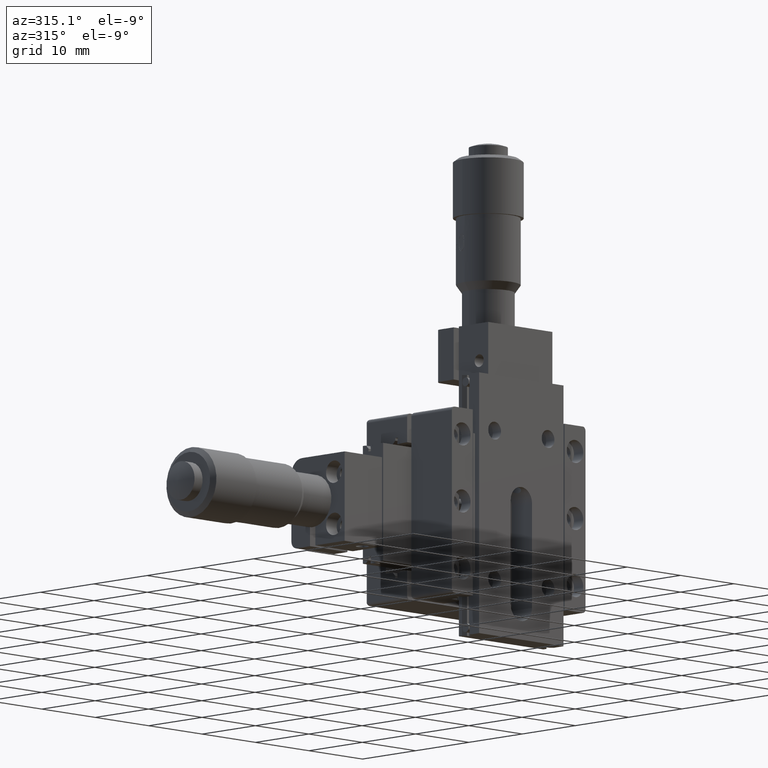
[diagram: clean part render]
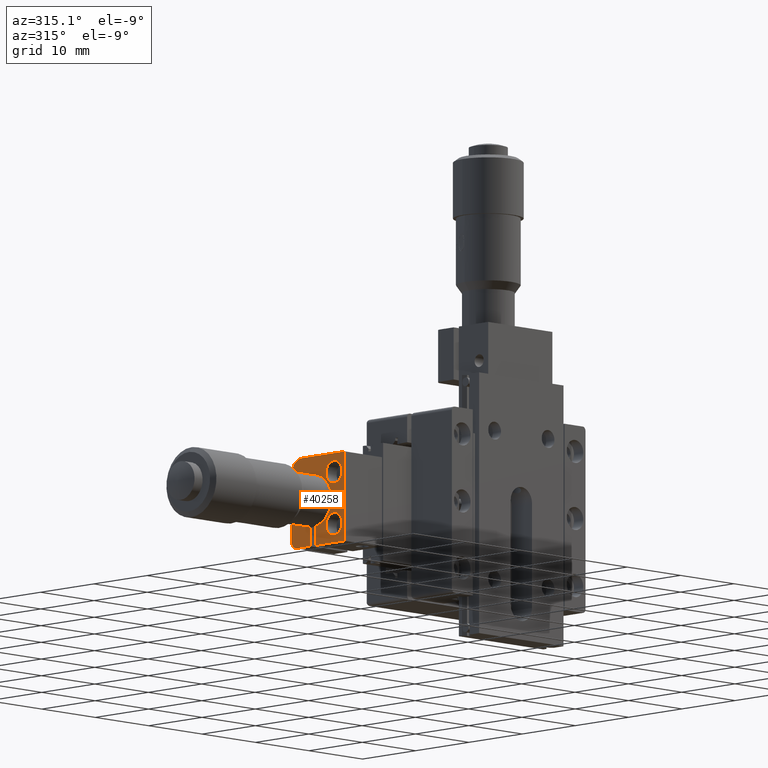
[diagram: same view with one face highlighted and labeled with its STEP entity id]
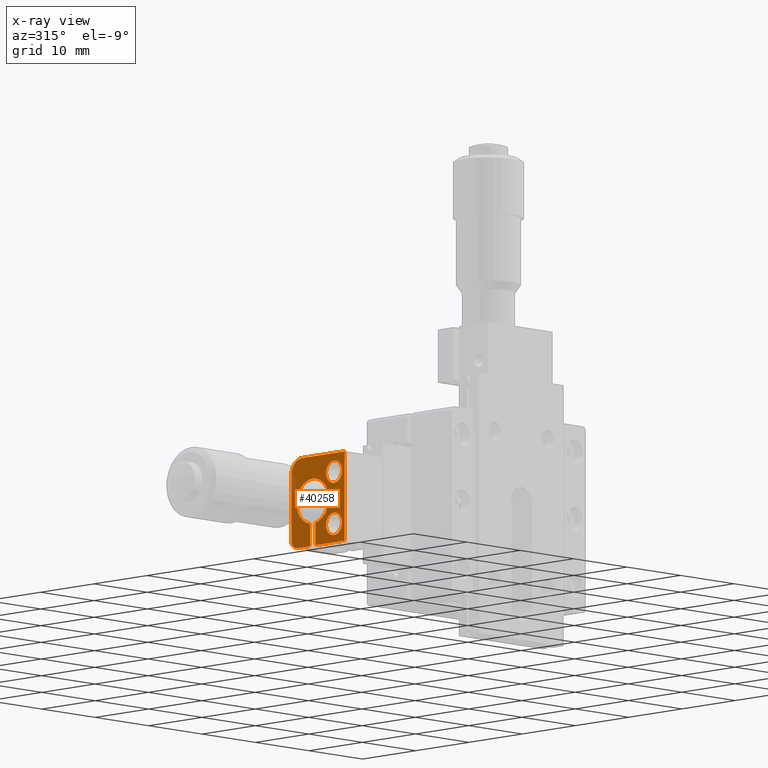
[diagram: x-ray of the same camera — body ghosted, the highlighted face saturated]
A machine part, auxiliary view. The second image highlights one B-rep face of the part: STEP entity #40258.
The next image is the same camera in x-ray: the body ghosted, the highlighted face saturated — about 4% of this face is hidden behind the body in this view.
In plain terms, the highlighted planar face has unit normal (-1, -0, 0).
Its self-contained STEP definition (entity closure, byte-faithful):
#64 = VERTEX_POINT ( 'NONE', #32658 ) ;
#610 = DIRECTION ( 'NONE',  ( -5.551115123125776800E-016, 8.627508404916919900E-016, -1.000000000000000000 ) ) ;
#953 = VECTOR ( 'NONE', #23412, 1000.000000000000000 ) ;
#1407 = FACE_BOUND ( 'NONE', #37531, .T. ) ;
#1509 = EDGE_LOOP ( 'NONE', ( #20635, #67896, #46888, #70201, #14124, #55356, #52068, #8792, #59016, #42901, #12115 ) ) ;
#1911 = CARTESIAN_POINT ( 'NONE',  ( -24.49999999999914000, 15.10000000000000900, -5.999999999999142000 ) ) ;
#2759 = LINE ( 'NONE', #54624, #59820 ) ;
#4376 = CARTESIAN_POINT ( 'NONE',  ( -24.49999999999914000, 10.60000000000002800, 2.000000000000874000 ) ) ;
#4426 = CARTESIAN_POINT ( 'NONE',  ( -24.49999999999916500, 18.59999999999995200, 4.000000000000866000 ) ) ;
#5564 = DIRECTION ( 'NONE',  ( 0.0000000000000000000, -1.156482317317871700E-015, 1.000000000000000000 ) ) ;
#5572 = CARTESIAN_POINT ( 'NONE',  ( -24.49999999999914000, 14.10000000000000900, -5.999999999999135800 ) ) ;
#7340 = EDGE_CURVE ( 'NONE', #68285, #58389, #49350, .T. ) ;
#8687 = EDGE_CURVE ( 'NONE', #34482, #68753, #18601, .T. ) ;
#8792 = ORIENTED_EDGE ( 'NONE', *, *, #9695, .F. ) ;
#9630 = EDGE_CURVE ( 'NONE', #29493, #63213, #29939, .T. ) ;
#9695 = EDGE_CURVE ( 'NONE', #68753, #29493, #24027, .T. ) ;
#10308 = CARTESIAN_POINT ( 'NONE',  ( -24.49999999999914000, 8.600000000000033400, -5.999999999999137600 ) ) ;
#10404 = ORIENTED_EDGE ( 'NONE', *, *, #13450, .F. ) ;
#11099 = CARTESIAN_POINT ( 'NONE',  ( -24.49999999999914000, 17.59999999999998400, -4.999999999999138500 ) ) ;
#11724 = CARTESIAN_POINT ( 'NONE',  ( -24.49999999999914000, 14.10000000000004100, -2.958039891548931900 ) ) ;
#11819 = CARTESIAN_POINT ( 'NONE',  ( -24.49999999999914000, 14.60000000000000900, 8.680199795431189300E-013 ) ) ;
#12115 = ORIENTED_EDGE ( 'NONE', *, *, #7340, .T. ) ;
#13450 = EDGE_CURVE ( 'NONE', #28195, #54145, #36526, .T. ) ;
#13613 = CARTESIAN_POINT ( 'NONE',  ( -24.49999999999914000, 10.60000000000002800, -1.999999999999127100 ) ) ;
#14124 = ORIENTED_EDGE ( 'NONE', *, *, #47877, .F. ) ;
#14307 = VERTEX_POINT ( 'NONE', #63198 ) ;
#14935 = ORIENTED_EDGE ( 'NONE', *, *, #33885, .F. ) ;
#16029 = CARTESIAN_POINT ( 'NONE',  ( -24.49999999999914000, 10.60000000000003000, -3.499999999999126500 ) ) ;
#17466 = DIRECTION ( 'NONE',  ( 0.0000000000000000000, -1.156482317317871700E-015, 1.000000000000000000 ) ) ;
#17994 = CARTESIAN_POINT ( 'NONE',  ( -24.49999999999914000, 14.60000000000000900, 8.680199795431189300E-013 ) ) ;
#18338 = EDGE_CURVE ( 'NONE', #63881, #35128, #27239, .T. ) ;
#18601 = LINE ( 'NONE', #33190, #33865 ) ;
#20635 = ORIENTED_EDGE ( 'NONE', *, *, #51806, .F. ) ;
#20685 = VECTOR ( 'NONE', #65430, 1000.000000000000000 ) ;
#22467 = VERTEX_POINT ( 'NONE', #24119 ) ;
#23412 = DIRECTION ( 'NONE',  ( -5.551115123125777800E-016, 7.402861605769573300E-016, -1.000000000000000000 ) ) ;
#23611 = DIRECTION ( 'NONE',  ( 5.551115123125778800E-016, -7.402861605769571300E-016, 1.000000000000000000 ) ) ;
#23749 = CIRCLE ( 'NONE', #31041, 1.500000000000000000 ) ;
#24027 = LINE ( 'NONE', #10308, #68204 ) ;
#24119 = CARTESIAN_POINT ( 'NONE',  ( -24.49999999999914000, 15.10000000000000700, -2.958039891548933200 ) ) ;
#24195 = CARTESIAN_POINT ( 'NONE',  ( -24.49999999999914000, 16.59999999999995500, 4.000000000000858900 ) ) ;
#24263 = AXIS2_PLACEMENT_3D ( 'NONE', #17994, #56025, #39380 ) ;
#24692 = VECTOR ( 'NONE', #59150, 1000.000000000000000 ) ;
#25246 = CARTESIAN_POINT ( 'NONE',  ( -24.49999999999914000, 10.60000000000002600, 3.500000000000873500 ) ) ;
#27239 = LINE ( 'NONE', #58895, #24692 ) ;
#27688 = CIRCLE ( 'NONE', #43773, 1.499999999999999600 ) ;
#28145 = DIRECTION ( 'NONE',  ( -1.000000000000000000, -1.955095636017512700E-016, -2.220446049250319500E-016 ) ) ;
#28195 = VERTEX_POINT ( 'NONE', #4376 ) ;
#28857 = AXIS2_PLACEMENT_3D ( 'NONE', #11819, #60744, #43952 ) ;
#29422 = FACE_BOUND ( 'NONE', #52882, .T. ) ;
#29493 = VERTEX_POINT ( 'NONE', #56632 ) ;
#29939 = LINE ( 'NONE', #5572, #20685 ) ;
#30707 = DIRECTION ( 'NONE',  ( 0.0000000000000000000, -1.156482317317871300E-015, 1.000000000000000000 ) ) ;
#31041 = AXIS2_PLACEMENT_3D ( 'NONE', #25246, #52619, #30707 ) ;
#31058 = CARTESIAN_POINT ( 'NONE',  ( -24.49999999999914000, 14.60000000000000900, 3.000000000000857100 ) ) ;
#32054 = CARTESIAN_POINT ( 'NONE',  ( -24.49999999999914000, 8.600000000000028100, 6.000000000000862400 ) ) ;
#32422 = AXIS2_PLACEMENT_3D ( 'NONE', #11099, #54586, #32704 ) ;
#32658 = CARTESIAN_POINT ( 'NONE',  ( -24.49999999999916500, 18.59999999999998000, -4.999999999999132200 ) ) ;
#32704 = DIRECTION ( 'NONE',  ( 0.0000000000000000000, 0.0000000000000000000, 1.000000000000000000 ) ) ;
#32887 = CIRCLE ( 'NONE', #28857, 2.999999999999988900 ) ;
#33190 = CARTESIAN_POINT ( 'NONE',  ( -24.49999999999914000, 8.600000000000028100, 6.000000000000862400 ) ) ;
#33399 = CARTESIAN_POINT ( 'NONE',  ( -24.49999999999914000, 10.60000000000002600, 3.500000000000873500 ) ) ;
#33832 = DIRECTION ( 'NONE',  ( -1.000000000000000000, -1.955095636017512700E-016, -2.220446049250319500E-016 ) ) ;
#33833 = CARTESIAN_POINT ( 'NONE',  ( -24.49999999999916500, 18.59999999999995500, -5.999999999999133100 ) ) ;
#33865 = VECTOR ( 'NONE', #610, 1000.000000000000000 ) ;
#33885 = EDGE_CURVE ( 'NONE', #14307, #70216, #53027, .T. ) ;
#34482 = VERTEX_POINT ( 'NONE', #32054 ) ;
#34589 = CARTESIAN_POINT ( 'NONE',  ( -24.49999999999914000, 15.10000000000000900, -5.999999999999142000 ) ) ;
#35128 = VERTEX_POINT ( 'NONE', #65702 ) ;
#36069 = DIRECTION ( 'NONE',  ( -1.000000000000000000, -1.955095636017512700E-016, -2.220446049250319500E-016 ) ) ;
#36526 = CIRCLE ( 'NONE', #41032, 1.500000000000000000 ) ;
#37531 = EDGE_LOOP ( 'NONE', ( #46124, #14935 ) ) ;
#39380 = DIRECTION ( 'NONE',  ( 0.0000000000000000000, -5.782411586589378300E-016, 1.000000000000000000 ) ) ;
#40258 = ADVANCED_FACE ( 'NONE', ( #44831, #1407, #29422 ), #50966, .T. ) ;
#41032 = AXIS2_PLACEMENT_3D ( 'NONE', #33399, #28145, #49385 ) ;
#41852 = LINE ( 'NONE', #62464, #52053 ) ;
#42901 = ORIENTED_EDGE ( 'NONE', *, *, #56346, .F. ) ;
#43773 = AXIS2_PLACEMENT_3D ( 'NONE', #16029, #54038, #5564 ) ;
#43952 = DIRECTION ( 'NONE',  ( 0.0000000000000000000, -5.782411586589378300E-016, 1.000000000000000000 ) ) ;
#44594 = EDGE_CURVE ( 'NONE', #64, #35128, #54430, .T. ) ;
#44812 = DIRECTION ( 'NONE',  ( -1.000000000000000000, -1.955095636017518600E-016, 5.551115123125777800E-016 ) ) ;
#44831 = FACE_OUTER_BOUND ( 'NONE', #1509, .T. ) ;
#45013 = EDGE_CURVE ( 'NONE', #54145, #28195, #23749, .T. ) ;
#45026 = AXIS2_PLACEMENT_3D ( 'NONE', #24195, #36069, #51770 ) ;
#46124 = ORIENTED_EDGE ( 'NONE', *, *, #63002, .F. ) ;
#46843 = CARTESIAN_POINT ( 'NONE',  ( -24.49999999999914000, 10.60000000000002500, 5.000000000000874000 ) ) ;
#46888 = ORIENTED_EDGE ( 'NONE', *, *, #18338, .F. ) ;
#47877 = EDGE_CURVE ( 'NONE', #55663, #22467, #50723, .T. ) ;
#48372 = DIRECTION ( 'NONE',  ( 3.854263915582012400E-016, 1.000000000000000000, 6.599372177287871100E-017 ) ) ;
#49350 = CIRCLE ( 'NONE', #45026, 2.000000000000000000 ) ;
#49385 = DIRECTION ( 'NONE',  ( 0.0000000000000000000, -1.156482317317871300E-015, 1.000000000000000000 ) ) ;
#50187 = ORIENTED_EDGE ( 'NONE', *, *, #45013, .F. ) ;
#50447 = AXIS2_PLACEMENT_3D ( 'NONE', #33833, #44812, #23611 ) ;
#50723 = CIRCLE ( 'NONE', #24263, 2.999999999999988900 ) ;
#50857 = CARTESIAN_POINT ( 'NONE',  ( -24.49999999999914000, 8.600000000000033400, -5.999999999999137600 ) ) ;
#50966 = PLANE ( 'NONE',  #50447 ) ;
#51770 = DIRECTION ( 'NONE',  ( 0.0000000000000000000, 0.0000000000000000000, 1.000000000000000000 ) ) ;
#51806 = EDGE_CURVE ( 'NONE', #64, #58389, #41852, .T. ) ;
#52053 = VECTOR ( 'NONE', #56989, 1000.000000000000000 ) ;
#52068 = ORIENTED_EDGE ( 'NONE', *, *, #9630, .F. ) ;
#52191 = EDGE_CURVE ( 'NONE', #22467, #63881, #52890, .T. ) ;
#52619 = DIRECTION ( 'NONE',  ( -1.000000000000000000, -1.955095636017512700E-016, -2.220446049250319500E-016 ) ) ;
#52882 = EDGE_LOOP ( 'NONE', ( #50187, #10404 ) ) ;
#52890 = LINE ( 'NONE', #34589, #953 ) ;
#53027 = CIRCLE ( 'NONE', #65251, 1.499999999999999600 ) ;
#54038 = DIRECTION ( 'NONE',  ( -1.000000000000000000, -1.955095636017512700E-016, -2.220446049250319500E-016 ) ) ;
#54145 = VERTEX_POINT ( 'NONE', #46843 ) ;
#54430 = CIRCLE ( 'NONE', #32422, 1.000000000000000000 ) ;
#54586 = DIRECTION ( 'NONE',  ( -1.000000000000000000, -1.955095636017512700E-016, -2.220446049250319500E-016 ) ) ;
#54624 = CARTESIAN_POINT ( 'NONE',  ( -24.49999999999914000, 8.600000000000028100, 6.000000000000862400 ) ) ;
#54860 = DIRECTION ( 'NONE',  ( -3.854263915582010000E-016, -1.000000000000000000, 1.074786258248026800E-016 ) ) ;
#55356 = ORIENTED_EDGE ( 'NONE', *, *, #67898, .F. ) ;
#55663 = VERTEX_POINT ( 'NONE', #31058 ) ;
#56025 = DIRECTION ( 'NONE',  ( -1.000000000000000000, -1.955095636017512700E-016, -2.220446049250319500E-016 ) ) ;
#56346 = EDGE_CURVE ( 'NONE', #68285, #34482, #2759, .T. ) ;
#56632 = CARTESIAN_POINT ( 'NONE',  ( -24.49999999999914000, 14.10000000000000900, -5.999999999999135800 ) ) ;
#56989 = DIRECTION ( 'NONE',  ( 5.551115123125776800E-016, -8.848464502416904300E-016, 1.000000000000000000 ) ) ;
#58389 = VERTEX_POINT ( 'NONE', #4426 ) ;
#58895 = CARTESIAN_POINT ( 'NONE',  ( -24.49999999999914000, 8.600000000000033400, -5.999999999999137600 ) ) ;
#59016 = ORIENTED_EDGE ( 'NONE', *, *, #8687, .F. ) ;
#59150 = DIRECTION ( 'NONE',  ( 3.854263915582012400E-016, 1.000000000000000000, 6.599372177287871100E-017 ) ) ;
#59820 = VECTOR ( 'NONE', #54860, 1000.000000000000000 ) ;
#60744 = DIRECTION ( 'NONE',  ( -1.000000000000000000, -1.955095636017512700E-016, -2.220446049250319500E-016 ) ) ;
#62464 = CARTESIAN_POINT ( 'NONE',  ( -24.49999999999913700, 18.59999999999997700, 6.000000000000866000 ) ) ;
#63002 = EDGE_CURVE ( 'NONE', #70216, #14307, #27688, .T. ) ;
#63198 = CARTESIAN_POINT ( 'NONE',  ( -24.49999999999914000, 10.60000000000003200, -4.999999999999126900 ) ) ;
#63213 = VERTEX_POINT ( 'NONE', #11724 ) ;
#63881 = VERTEX_POINT ( 'NONE', #1911 ) ;
#65251 = AXIS2_PLACEMENT_3D ( 'NONE', #66856, #33832, #17466 ) ;
#65430 = DIRECTION ( 'NONE',  ( 5.551115123125777800E-016, -7.402861605769573300E-016, 1.000000000000000000 ) ) ;
#65702 = CARTESIAN_POINT ( 'NONE',  ( -24.49999999999914000, 17.59999999999995900, -5.999999999999139400 ) ) ;
#66856 = CARTESIAN_POINT ( 'NONE',  ( -24.49999999999914000, 10.60000000000003000, -3.499999999999126500 ) ) ;
#67896 = ORIENTED_EDGE ( 'NONE', *, *, #44594, .T. ) ;
#67898 = EDGE_CURVE ( 'NONE', #63213, #55663, #32887, .T. ) ;
#68204 = VECTOR ( 'NONE', #48372, 1000.000000000000000 ) ;
#68285 = VERTEX_POINT ( 'NONE', #69933 ) ;
#68753 = VERTEX_POINT ( 'NONE', #50857 ) ;
#69933 = CARTESIAN_POINT ( 'NONE',  ( -24.49999999999911200, 16.59999999999998000, 6.000000000000858900 ) ) ;
#70201 = ORIENTED_EDGE ( 'NONE', *, *, #52191, .F. ) ;
#70216 = VERTEX_POINT ( 'NONE', #13613 ) ;